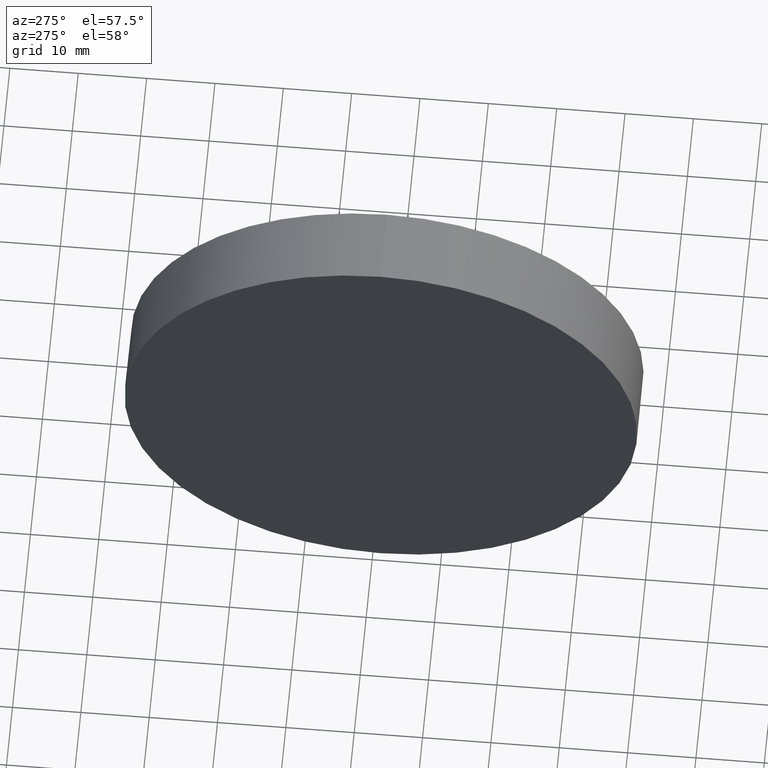
[diagram: clean part render]
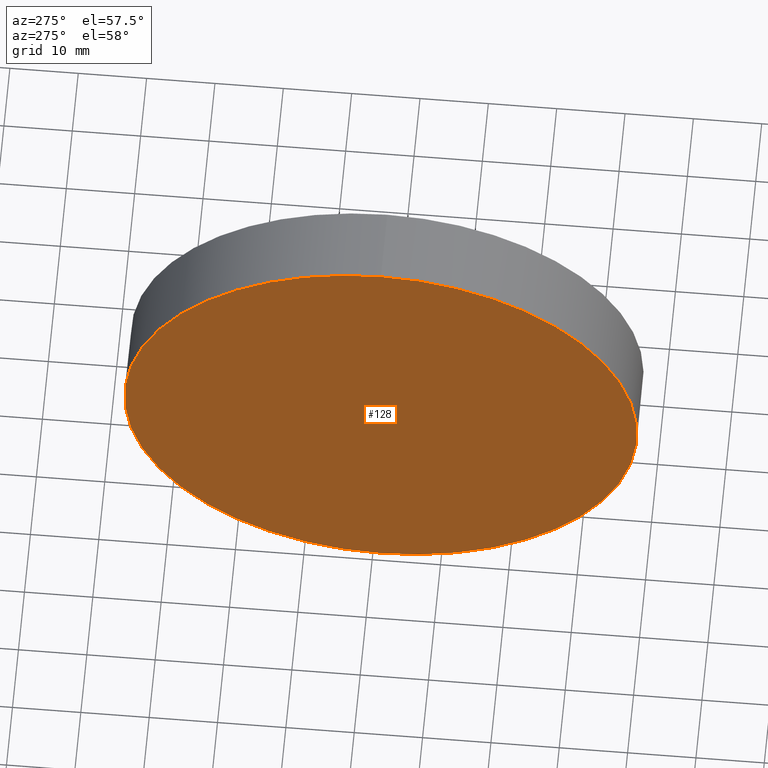
[diagram: same view with one face highlighted and labeled with its STEP entity id]
A machine part, auxiliary view. The second image highlights one B-rep face of the part: STEP entity #128.
In plain terms, the highlighted planar face has unit normal (1, 0, 0).
Its self-contained STEP definition (entity closure, byte-faithful):
#23 = EDGE_LOOP ( 'NONE', ( #150, #57 ) ) ;
#25 = DIRECTION ( 'NONE',  ( 0.0000000000000000000, 0.0000000000000000000, 1.000000000000000000 ) ) ;
#41 = CARTESIAN_POINT ( 'NONE',  ( 230.1996119052661200, 138.7560422467448700, 0.0000000000000000000 ) ) ;
#55 = CARTESIAN_POINT ( 'NONE',  ( 230.1996119052661200, 138.7560422467448700, 37.50000000000000700 ) ) ;
#57 = ORIENTED_EDGE ( 'NONE', *, *, #185, .T. ) ;
#59 = VERTEX_POINT ( 'NONE', #77 ) ;
#60 = AXIS2_PLACEMENT_3D ( 'NONE', #41, #181, #25 ) ;
#69 = DIRECTION ( 'NONE',  ( 0.0000000000000000000, 0.0000000000000000000, 1.000000000000000000 ) ) ;
#77 = CARTESIAN_POINT ( 'NONE',  ( 230.1996119052661200, 138.7560422467448700, -37.50000000000000700 ) ) ;
#82 = CARTESIAN_POINT ( 'NONE',  ( 230.1996119052661200, 138.7560422467448700, 0.0000000000000000000 ) ) ;
#86 = CIRCLE ( 'NONE', #104, 37.50000000000000700 ) ;
#87 = AXIS2_PLACEMENT_3D ( 'NONE', #106, #164, #162 ) ;
#94 = EDGE_CURVE ( 'NONE', #156, #59, #86, .T. ) ;
#97 = FACE_OUTER_BOUND ( 'NONE', #23, .T. ) ;
#104 = AXIS2_PLACEMENT_3D ( 'NONE', #82, #108, #69 ) ;
#106 = CARTESIAN_POINT ( 'NONE',  ( 230.1996119052661200, 138.7560422467448700, 0.0000000000000000000 ) ) ;
#108 = DIRECTION ( 'NONE',  ( -1.000000000000000000, -0.0000000000000000000, -0.0000000000000000000 ) ) ;
#127 = CIRCLE ( 'NONE', #60, 37.50000000000000700 ) ;
#128 = ADVANCED_FACE ( 'NONE', ( #97 ), #160, .F. ) ;
#150 = ORIENTED_EDGE ( 'NONE', *, *, #94, .T. ) ;
#156 = VERTEX_POINT ( 'NONE', #55 ) ;
#160 = PLANE ( 'NONE',  #87 ) ;
#162 = DIRECTION ( 'NONE',  ( 0.0000000000000000000, 0.0000000000000000000, -1.000000000000000000 ) ) ;
#164 = DIRECTION ( 'NONE',  ( 1.000000000000000000, 0.0000000000000000000, 0.0000000000000000000 ) ) ;
#181 = DIRECTION ( 'NONE',  ( -1.000000000000000000, -0.0000000000000000000, -0.0000000000000000000 ) ) ;
#185 = EDGE_CURVE ( 'NONE', #59, #156, #127, .T. ) ;